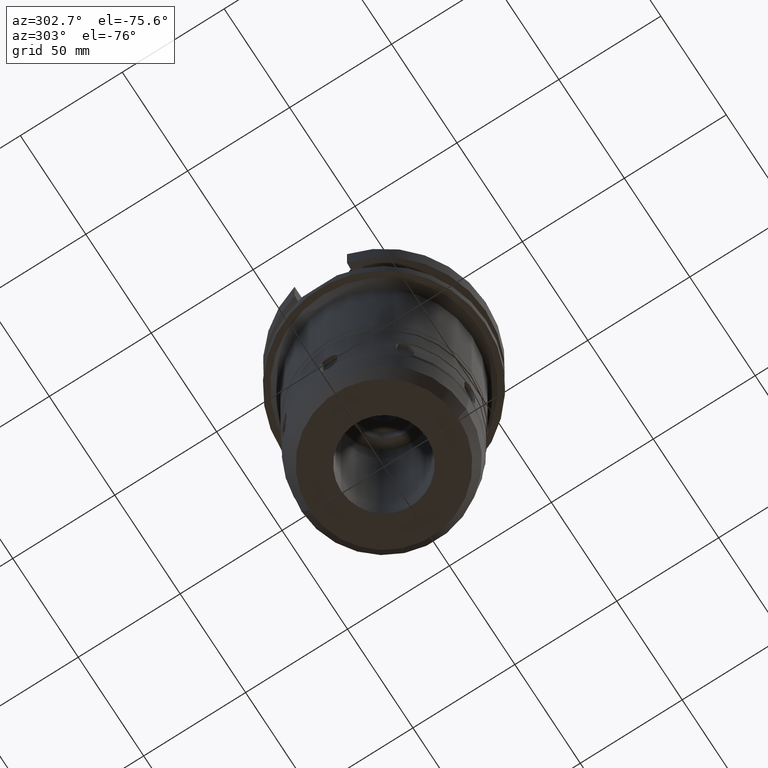
[diagram: clean part render]
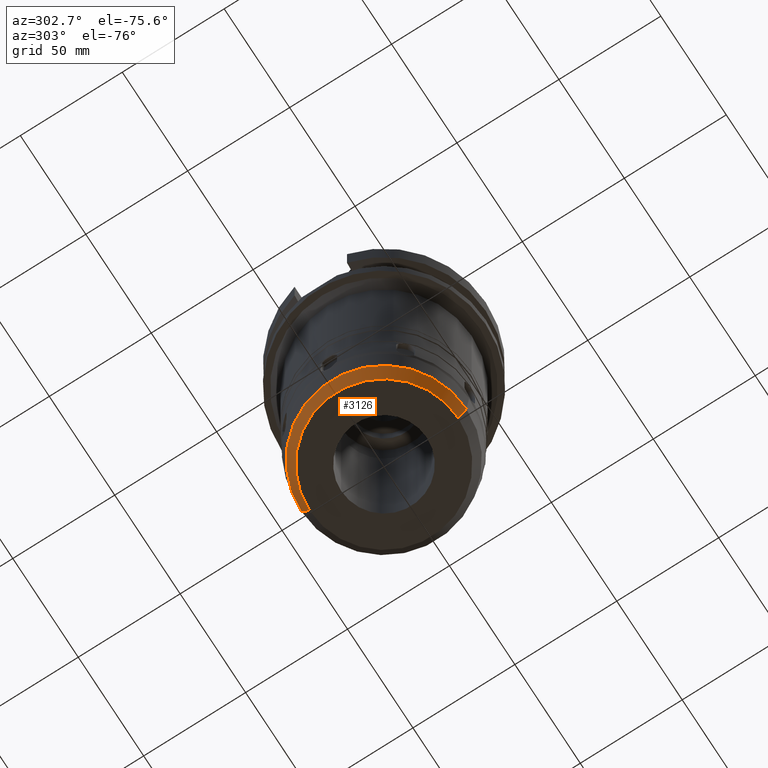
[diagram: same view with one face highlighted and labeled with its STEP entity id]
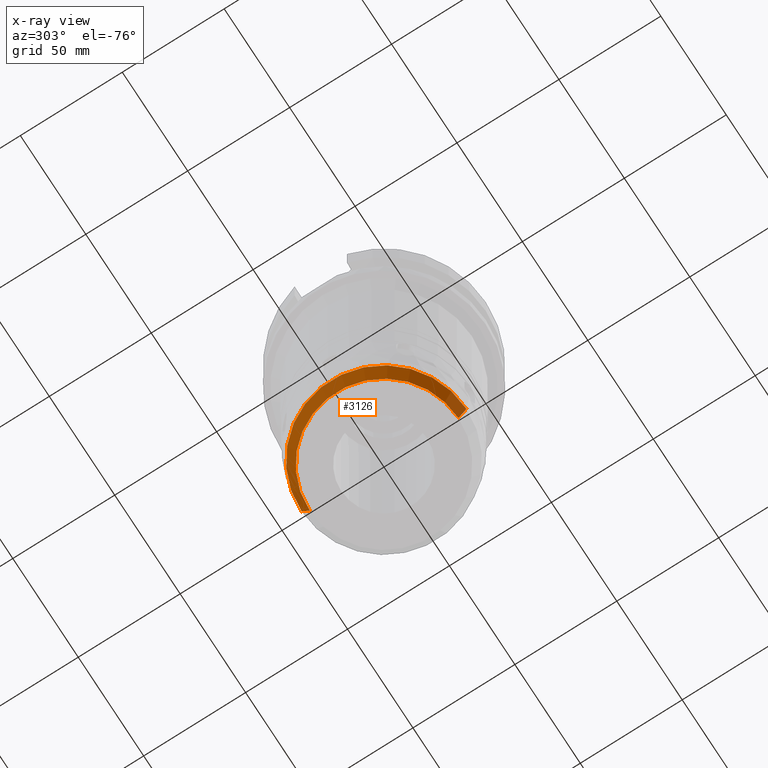
[diagram: x-ray of the same camera — body ghosted, the highlighted face saturated]
A machine part, auxiliary view. The second image highlights one B-rep face of the part: STEP entity #3126.
The next image is the same camera in x-ray: the body ghosted, the highlighted face saturated — about 0% of this face is hidden behind the body in this view.
In plain terms, the highlighted conical surface has half-angle 30 deg.
Its self-contained STEP definition (entity closure, byte-faithful):
#270=CARTESIAN_POINT('',(0.E0,0.E0,-1.65E2));
#271=DIRECTION('',(0.E0,0.E0,1.E0));
#272=DIRECTION('',(0.E0,1.E0,0.E0));
#273=AXIS2_PLACEMENT_3D('',#270,#271,#272);
#294=DIRECTION('',(0.E0,-4.999999999999E-1,-8.660254037845E-1));
#295=VECTOR('',#294,7.909698687897E0);
#296=CARTESIAN_POINT('',(0.E0,4.045484934395E1,-1.5815E2));
#297=LINE('',#296,#295);
#309=DIRECTION('',(0.E0,4.999999999999E-1,-8.660254037845E-1));
#310=VECTOR('',#309,7.909698687897E0);
#311=CARTESIAN_POINT('',(0.E0,-4.045484934395E1,-1.5815E2));
#312=LINE('',#311,#310);
#323=CARTESIAN_POINT('',(0.E0,0.E0,-1.5815E2));
#324=DIRECTION('',(0.E0,0.E0,-1.E0));
#325=DIRECTION('',(0.E0,-1.E0,0.E0));
#326=AXIS2_PLACEMENT_3D('',#323,#324,#325);
#2520=CARTESIAN_POINT('',(0.E0,-3.65E1,-1.65E2));
#2521=CARTESIAN_POINT('',(0.E0,3.65E1,-1.65E2));
#2522=VERTEX_POINT('',#2520);
#2523=VERTEX_POINT('',#2521);
#2524=CARTESIAN_POINT('',(0.E0,4.045484934395E1,-1.5815E2));
#2525=VERTEX_POINT('',#2524);
#2526=CARTESIAN_POINT('',(0.E0,-4.045484934395E1,-1.5815E2));
#2527=VERTEX_POINT('',#2526);
#3114=CARTESIAN_POINT('',(0.E0,0.E0,-1.61575E2));
#3115=DIRECTION('',(0.E0,0.E0,1.E0));
#3116=DIRECTION('',(0.E0,1.E0,0.E0));
#3117=AXIS2_PLACEMENT_3D('',#3114,#3115,#3116);
#3118=CONICAL_SURFACE('',#3117,3.847742467197E1,3.E1);
#3119=ORIENTED_EDGE('',*,*,#3104,.F.);
#3121=ORIENTED_EDGE('',*,*,#3120,.F.);
#3122=ORIENTED_EDGE('',*,*,#3107,.T.);
#3123=ORIENTED_EDGE('',*,*,#3090,.F.);
#3124=EDGE_LOOP('',(#3119,#3121,#3122,#3123));
#3125=FACE_OUTER_BOUND('',#3124,.F.);
#274=CIRCLE('',#273,3.65E1);
#327=CIRCLE('',#326,4.045484934395E1);
#3090=EDGE_CURVE('',#2523,#2522,#274,.T.);
#3104=EDGE_CURVE('',#2525,#2523,#297,.T.);
#3107=EDGE_CURVE('',#2527,#2522,#312,.T.);
#3120=EDGE_CURVE('',#2527,#2525,#327,.T.);
#3126=ADVANCED_FACE('',(#3125),#3118,.T.);